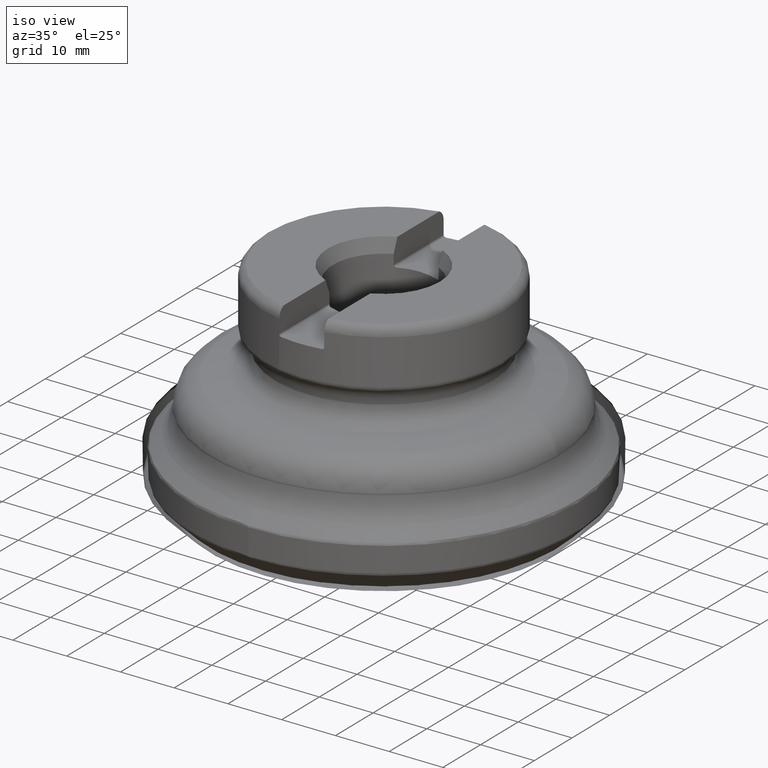
[diagram: clean part render]
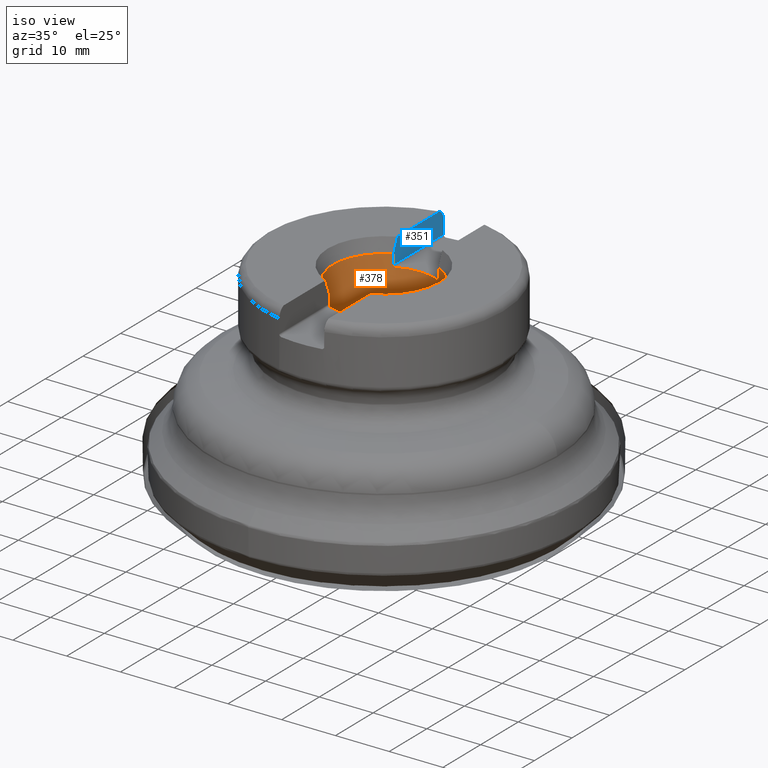
[diagram: same view with the hole feature highlighted: cylindrical wall and planar end face, labeled with their STEP entity ids]
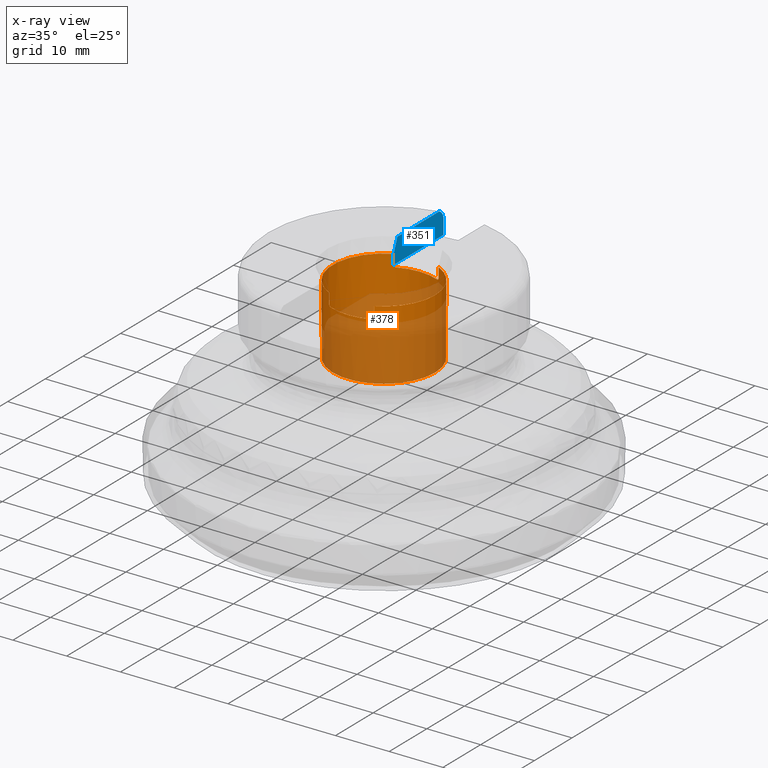
[diagram: x-ray of the same camera — body ghosted, the hole faces saturated]
A machine part, iso view. The highlighted faces form one hole feature of diameter 19.05 mm: the cylindrical wall (entity #378, orange) and its adjacent planar end face (entity #351, blue) — they share a circular edge in the B-rep.
The next image is the same camera in x-ray (body ghosted, the hole faces saturated) — the bore reads through the body.
Wall:
#175=CYLINDRICAL_SURFACE('',#1074,9.525);
#208=FACE_BOUND('',#486,.T.);
#209=FACE_BOUND('',#487,.T.);
#294=LINE('',#1537,#322);
#300=LINE('',#1554,#328);
#304=LINE('',#1567,#332);
#306=LINE('',#1576,#334);
#322=VECTOR('',#1135,1.);
#328=VECTOR('',#1143,1.);
#332=VECTOR('',#1149,1.);
#334=VECTOR('',#1153,1.);
#378=ADVANCED_FACE('',(#208,#209),#175,.F.);
#486=EDGE_LOOP('',(#714));
#487=EDGE_LOOP('',(#715,#716,#717,#718,#719,#720,#721,#722,#723,#724,#725,
#726));
#561=CIRCLE('',#1038,9.525);
#563=CIRCLE('',#1041,9.525);
#578=CIRCLE('',#1062,9.525);
#579=CIRCLE('',#1066,9.525);
#582=CIRCLE('',#1073,9.525);
#714=ORIENTED_EDGE('',*,*,#950,.F.);
#715=ORIENTED_EDGE('',*,*,#912,.T.);
#716=ORIENTED_EDGE('',*,*,#903,.T.);
#717=ORIENTED_EDGE('',*,*,#946,.F.);
#718=ORIENTED_EDGE('',*,*,#939,.T.);
#719=ORIENTED_EDGE('',*,*,#947,.F.);
#720=ORIENTED_EDGE('',*,*,#891,.T.);
#721=ORIENTED_EDGE('',*,*,#910,.T.);
#722=ORIENTED_EDGE('',*,*,#898,.T.);
#723=ORIENTED_EDGE('',*,*,#944,.F.);
#724=ORIENTED_EDGE('',*,*,#945,.T.);
#725=ORIENTED_EDGE('',*,*,#941,.F.);
#726=ORIENTED_EDGE('',*,*,#906,.T.);
#810=VERTEX_POINT('',#1536);
#811=VERTEX_POINT('',#1538);
#814=VERTEX_POINT('',#1548);
#816=VERTEX_POINT('',#1553);
#818=VERTEX_POINT('',#1561);
#820=VERTEX_POINT('',#1566);
#822=VERTEX_POINT('',#1575);
#823=VERTEX_POINT('',#1577);
#848=VERTEX_POINT('',#1881);
#849=VERTEX_POINT('',#1883);
#850=VERTEX_POINT('',#1905);
#851=VERTEX_POINT('',#1909);
#854=VERTEX_POINT('',#1972);
#891=EDGE_CURVE('',#811,#810,#294,.T.);
#898=EDGE_CURVE('',#814,#816,#300,.T.);
#903=EDGE_CURVE('',#818,#820,#304,.T.);
#906=EDGE_CURVE('',#823,#822,#306,.T.);
#910=EDGE_CURVE('',#810,#814,#561,.T.);
#912=EDGE_CURVE('',#822,#818,#563,.T.);
#939=EDGE_CURVE('',#849,#848,#578,.T.);
#941=EDGE_CURVE('',#823,#850,#1014,.T.);
#944=EDGE_CURVE('',#851,#816,#1015,.T.);
#945=EDGE_CURVE('',#851,#850,#579,.T.);
#946=EDGE_CURVE('',#849,#820,#1016,.T.);
#947=EDGE_CURVE('',#811,#848,#1017,.T.);
#950=EDGE_CURVE('',#854,#854,#582,.T.);
#1014=B_SPLINE_CURVE_WITH_KNOTS('',3,(#1886,#1887,#1888,#1889,#1890,#1891,
#1892,#1893,#1894,#1895,#1896,#1897,#1898,#1899,#1900,#1901,#1902,#1903,
#1904),.UNSPECIFIED.,.F.,.F.,(4,3,3,3,3,3,4),(0.,0.046691483221306,0.253760914020807,
0.483837973279792,0.726357143929704,0.965681344552278,1.),.UNSPECIFIED.);
#1015=B_SPLINE_CURVE_WITH_KNOTS('',3,(#1910,#1911,#1912,#1913,#1914,#1915,
#1916,#1917,#1918,#1919,#1920,#1921,#1922,#1923,#1924,#1925),
 .UNSPECIFIED.,.F.,.F.,(4,3,3,3,3,4),(0.,0.206937369334465,0.423509286042872,
0.620977371917134,0.810210906928371,1.),.UNSPECIFIED.);
#1016=B_SPLINE_CURVE_WITH_KNOTS('',3,(#1929,#1930,#1931,#1932,#1933,#1934,
#1935,#1936,#1937,#1938,#1939,#1940,#1941,#1942,#1943,#1944,#1945,#1946,
#1947),.UNSPECIFIED.,.F.,.F.,(4,3,3,3,3,3,4),(0.,0.0386594743957453,0.269044895788536,
0.480081106362779,0.673449817538788,0.857853975453466,1.),.UNSPECIFIED.);
#1017=B_SPLINE_CURVE_WITH_KNOTS('',3,(#1949,#1950,#1951,#1952,#1953,#1954,
#1955,#1956,#1957,#1958,#1959,#1960,#1961,#1962,#1963,#1964),
 .UNSPECIFIED.,.F.,.F.,(4,3,3,3,3,4),(0.,0.108413031410189,0.323007237368325,
0.55870780391992,0.801825649246486,1.),.UNSPECIFIED.);
#1038=AXIS2_PLACEMENT_3D('',#1583,#1160,#1161);
#1041=AXIS2_PLACEMENT_3D('',#1586,#1166,#1167);
#1062=AXIS2_PLACEMENT_3D('',#1882,#1218,#1219);
#1066=AXIS2_PLACEMENT_3D('',#1927,#1229,#1230);
#1073=AXIS2_PLACEMENT_3D('',#1971,#1243,#1244);
#1074=AXIS2_PLACEMENT_3D('',#1973,#1245,#1246);
#1135=DIRECTION('',(1.17145536458253E-15,1.33226762955019E-15,1.));
#1143=DIRECTION('',(-1.17145536458253E-15,-1.33226762955019E-15,-1.));
#1149=DIRECTION('',(-1.17145536458253E-15,-1.33226762955019E-15,-1.));
#1153=DIRECTION('',(1.17145536458253E-15,1.33226762955019E-15,1.));
#1160=DIRECTION('',(1.17145536458253E-15,1.33226762955019E-15,1.));
#1161=DIRECTION('',(1.,-3.1641356201817E-15,-1.45698559662094E-15));
#1166=DIRECTION('',(1.17145536458253E-15,1.33226762955019E-15,1.));
#1167=DIRECTION('',(1.,-3.1641356201817E-15,-1.45698559662094E-15));
#1218=DIRECTION('',(1.17145536458253E-15,1.33226762955019E-15,1.));
#1219=DIRECTION('',(-1.,3.1641356201817E-15,1.45698559662094E-15));
#1229=DIRECTION('',(1.17145536458253E-15,1.33226762955019E-15,1.));
#1230=DIRECTION('',(-1.,3.1641356201817E-15,1.45698559662094E-15));
#1243=DIRECTION('',(1.17145536458253E-15,1.33226762955019E-15,1.));
#1244=DIRECTION('',(1.,-3.1641356201817E-15,-1.09273919746571E-15));
#1245=DIRECTION('',(-1.17145536458253E-15,-1.33226762955019E-15,-1.));
#1246=DIRECTION('',(1.,-3.1641356201817E-15,-1.45698559662094E-15));
#1536=CARTESIAN_POINT('',(-4.17499999999993,8.56124990874587,37.5));
#1537=CARTESIAN_POINT('',(-4.17499999999992,8.56124990874587,40.2));
#1538=CARTESIAN_POINT('',(-4.17499999999993,8.56124990874587,35.65));
#1548=CARTESIAN_POINT('',(-4.17499999999998,-8.56124990874574,37.5));
#1553=CARTESIAN_POINT('',(-4.17499999999998,-8.56124990874575,35.65));
#1554=CARTESIAN_POINT('',(-4.17499999999998,-8.56124990874574,40.2));
#1561=CARTESIAN_POINT('',(4.17500000000008,8.56124990874584,37.5));
#1566=CARTESIAN_POINT('',(4.17500000000008,8.56124990874583,35.65));
#1567=CARTESIAN_POINT('',(4.17500000000008,8.56124990874584,40.2));
#1575=CARTESIAN_POINT('',(4.17500000000002,-8.56124990874576,37.5));
#1576=CARTESIAN_POINT('',(4.17500000000003,-8.56124990874576,40.2));
#1577=CARTESIAN_POINT('',(4.17500000000002,-8.56124990874577,35.65));
#1583=CARTESIAN_POINT('',(4.39295761718448E-14,4.9960036108132E-14,37.5));
#1586=CARTESIAN_POINT('',(4.39295761718448E-14,4.9960036108132E-14,37.5));
#1881=CARTESIAN_POINT('',(-3.77499999999993,8.74499857061173,35.25));
#1882=CARTESIAN_POINT('',(4.12938016015341E-14,4.69624339416441E-14,35.25));
#1883=CARTESIAN_POINT('',(3.77500000000008,8.7449985706117,35.25));
#1886=CARTESIAN_POINT('',(4.17500000000002,-8.56124990874577,35.65));
#1887=CARTESIAN_POINT('',(4.17500000000002,-8.56124990874577,35.6396736248158));
#1888=CARTESIAN_POINT('',(4.1745992399474,-8.56144537883924,35.6293377166004));
#1889=CARTESIAN_POINT('',(4.17380079457273,-8.56183461223257,35.6190496163484));
#1890=CARTESIAN_POINT('',(4.17029864495975,-8.56354187189121,35.5739238413632));
#1891=CARTESIAN_POINT('',(4.15879922795192,-8.56915472133482,35.5288623706117));
#1892=CARTESIAN_POINT('',(4.14081829740184,-8.57783474006708,35.4882070048301));
#1893=CARTESIAN_POINT('',(4.12087014956781,-8.5874644028029,35.443103708057));
#1894=CARTESIAN_POINT('',(4.09231403370197,-8.60116107532832,35.4018346841028));
#1895=CARTESIAN_POINT('',(4.05869487562512,-8.61699604888931,35.3680120258875));
#1896=CARTESIAN_POINT('',(4.02323625649087,-8.63369742776431,35.3323387721724));
#1897=CARTESIAN_POINT('',(3.98100721019213,-8.6533014676501,35.3036524385155));
#1898=CARTESIAN_POINT('',(3.93621356246058,-8.67362944739403,35.2839259811476));
#1899=CARTESIAN_POINT('',(3.89194493821607,-8.6937191641844,35.2644307363278));
#1900=CARTESIAN_POINT('',(3.84386899581251,-8.71510374127135,35.2530544874384));
#1901=CARTESIAN_POINT('',(3.79588582965834,-8.73595305437241,35.2505456445106));
#1902=CARTESIAN_POINT('',(3.78893348395288,-8.73897393948729,35.2501821348727));
#1903=CARTESIAN_POINT('',(3.78196754203756,-8.74199085471787,35.25));
#1904=CARTESIAN_POINT('',(3.77500000000002,-8.74499857061163,35.25));
#1905=CARTESIAN_POINT('',(3.77500000000002,-8.74499857061163,35.25));
#1909=CARTESIAN_POINT('',(-3.77499999999998,-8.74499857061161,35.25));
#1910=CARTESIAN_POINT('',(-3.77499999999998,-8.74499857061161,35.25));
#1911=CARTESIAN_POINT('',(-3.81656461614317,-8.72705615190524,35.25));
#1912=CARTESIAN_POINT('',(-3.85841738595403,-8.70862364477195,35.2565850754852));
#1913=CARTESIAN_POINT('',(-3.89803715274735,-8.69085331574525,35.2693927758912));
#1914=CARTESIAN_POINT('',(-3.93955464915789,-8.67223181361909,35.282813946652));
#1915=CARTESIAN_POINT('',(-3.97956810047,-8.65391245161978,35.3034034130693));
#1916=CARTESIAN_POINT('',(-4.01513068905723,-8.63738100061528,35.3300980585041));
#1917=CARTESIAN_POINT('',(-4.04758633172246,-8.62229382929691,35.3544605109498));
#1918=CARTESIAN_POINT('',(-4.07705931876257,-8.6083638635753,35.3844780066998));
#1919=CARTESIAN_POINT('',(-4.1012116856857,-8.59684172875097,35.418513637287));
#1920=CARTESIAN_POINT('',(-4.12434584444942,-8.58580534059194,35.4511144040829));
#1921=CARTESIAN_POINT('',(-4.14311039443197,-8.57673929736878,35.4882060452832));
#1922=CARTESIAN_POINT('',(-4.15569850755682,-8.57063561903602,35.5272455852362));
#1923=CARTESIAN_POINT('',(-4.16830737273042,-8.56452187852562,35.5663494835589));
#1924=CARTESIAN_POINT('',(-4.17499999999998,-8.56124990874575,35.6084611486916));
#1925=CARTESIAN_POINT('',(-4.17499999999998,-8.56124990874575,35.65));
#1927=CARTESIAN_POINT('',(4.12938016015341E-14,4.69624339416441E-14,35.25));
#1929=CARTESIAN_POINT('',(3.77500000000008,8.7449985706117,35.25));
#1930=CARTESIAN_POINT('',(3.7828319025705,8.74161773161388,35.25));
#1931=CARTESIAN_POINT('',(3.79066209357225,8.73822513158498,35.2502301556307));
#1932=CARTESIAN_POINT('',(3.79847354540314,8.73482820236744,35.250689353177));
#1933=CARTESIAN_POINT('',(3.84462536051248,8.71475838019079,35.2534023956065));
#1934=CARTESIAN_POINT('',(3.89079669083716,8.69422372993685,35.2643109342927));
#1935=CARTESIAN_POINT('',(3.93351596331444,8.67485314955542,35.2827498272641));
#1936=CARTESIAN_POINT('',(3.97270036278945,8.65708541813789,35.2996629652033));
#1937=CARTESIAN_POINT('',(4.00991051466914,8.63988011341602,35.3233156854881));
#1938=CARTESIAN_POINT('',(4.04237799729332,8.624662609459,35.3524953671563));
#1939=CARTESIAN_POINT('',(4.07214795310079,8.61070943589317,35.3792506855096));
#1940=CARTESIAN_POINT('',(4.09858614795708,8.59812510101886,35.4112783314609));
#1941=CARTESIAN_POINT('',(4.11951237058177,8.58808726251806,35.4467483665104));
#1942=CARTESIAN_POINT('',(4.13946274679613,8.57851751559996,35.4805643378047));
#1943=CARTESIAN_POINT('',(4.15483582076009,8.57106009559083,35.5183282752095));
#1944=CARTESIAN_POINT('',(4.16413292027586,8.5665408434371,35.5573956245222));
#1945=CARTESIAN_POINT('',(4.17129463523328,8.56305958611692,35.5874898726738));
#1946=CARTESIAN_POINT('',(4.17500000000008,8.56124990874583,35.6188700612677));
#1947=CARTESIAN_POINT('',(4.17500000000008,8.56124990874583,35.65));
#1949=CARTESIAN_POINT('',(-4.17499999999993,8.56124990874587,35.65));
#1950=CARTESIAN_POINT('',(-4.17499999999993,8.56124990874587,35.6259936956598));
#1951=CARTESIAN_POINT('',(-4.1728133899315,8.56231721657196,35.6018703742219));
#1952=CARTESIAN_POINT('',(-4.16852901904099,8.56440253709584,35.5783417054865));
#1953=CARTESIAN_POINT('',(-4.16015976808065,8.56847608050353,35.5323799205614));
#1954=CARTESIAN_POINT('',(-4.14336818386909,8.5766412679025,35.4875736915034));
#1955=CARTESIAN_POINT('',(-4.12037587702253,8.5876730044903,35.4482191694663));
#1956=CARTESIAN_POINT('',(-4.09514332914582,8.59977961142941,35.4050301642006));
#1957=CARTESIAN_POINT('',(-4.06163691019236,8.61571094335509,35.3668454300065));
#1958=CARTESIAN_POINT('',(-4.02378011558017,8.63335500147319,35.3367773091044));
#1959=CARTESIAN_POINT('',(-3.98469105338971,8.65157338715892,35.305730447902));
#1960=CARTESIAN_POINT('',(-3.93972891098105,8.67218409589322,35.2822348974642));
#1961=CARTESIAN_POINT('',(-3.89305024467195,8.69308833455983,35.2678166150486));
#1962=CARTESIAN_POINT('',(-3.85493127539028,8.71015925998672,35.2560422841187));
#1963=CARTESIAN_POINT('',(-3.81484118786619,8.72780011334718,35.25));
#1964=CARTESIAN_POINT('',(-3.77499999999993,8.74499857061173,35.25));
#1971=CARTESIAN_POINT('',(2.86420836640428E-14,3.25739435425021E-14,24.45));
#1972=CARTESIAN_POINT('',(9.52500000000003,2.43555176027144E-15,24.45));
#1973=CARTESIAN_POINT('',(4.70925056562176E-14,5.35571587079176E-14,40.2));
End face:
#281=PLANE('',#1033);
#293=LINE('',#1530,#321);
#294=LINE('',#1537,#322);
#295=LINE('',#1539,#323);
#296=LINE('',#1541,#324);
#321=VECTOR('',#1134,1.);
#322=VECTOR('',#1135,1.);
#323=VECTOR('',#1136,1.);
#324=VECTOR('',#1137,1.);
#351=ADVANCED_FACE('',(#428),#281,.T.);
#428=FACE_OUTER_BOUND('',#444,.T.);
#444=EDGE_LOOP('',(#617,#618,#619,#620,#621,#622));
#617=ORIENTED_EDGE('',*,*,#883,.F.);
#618=ORIENTED_EDGE('',*,*,#889,.T.);
#619=ORIENTED_EDGE('',*,*,#890,.F.);
#620=ORIENTED_EDGE('',*,*,#891,.F.);
#621=ORIENTED_EDGE('',*,*,#892,.T.);
#622=ORIENTED_EDGE('',*,*,#893,.T.);
#803=VERTEX_POINT('',#1477);
#804=VERTEX_POINT('',#1491);
#809=VERTEX_POINT('',#1531);
#810=VERTEX_POINT('',#1536);
#811=VERTEX_POINT('',#1538);
#812=VERTEX_POINT('',#1540);
#883=EDGE_CURVE('',#803,#804,#994,.T.);
#889=EDGE_CURVE('',#803,#809,#293,.T.);
#890=EDGE_CURVE('',#810,#809,#997,.T.);
#891=EDGE_CURVE('',#811,#810,#294,.T.);
#892=EDGE_CURVE('',#811,#812,#295,.T.);
#893=EDGE_CURVE('',#812,#804,#296,.T.);
#994=B_SPLINE_CURVE_WITH_KNOTS('',3,(#1478,#1479,#1480,#1481,#1482,#1483,
#1484,#1485,#1486,#1487,#1488,#1489,#1490),.UNSPECIFIED.,.F.,.F.,(4,3,3,
3,4),(0.,0.250169184687352,0.556547674045343,0.745651126073312,1.),
 .UNSPECIFIED.);
#997=B_SPLINE_CURVE_WITH_KNOTS('',3,(#1532,#1533,#1534,#1535),
 .UNSPECIFIED.,.F.,.F.,(4,4),(0.,1.),.UNSPECIFIED.);
#1033=AXIS2_PLACEMENT_3D('',#1542,#1138,#1139);
#1134=DIRECTION('',(-3.16413562018169E-15,-1.,1.33226762955019E-15));
#1135=DIRECTION('',(1.17145536458253E-15,1.33226762955019E-15,1.));
#1136=DIRECTION('',(3.16413562018169E-15,1.,-1.33226762955019E-15));
#1137=DIRECTION('',(1.17145536458253E-15,1.33226762955019E-15,1.));
#1138=DIRECTION('',(1.,-3.1641356201817E-15,-1.26409695217795E-15));
#1139=DIRECTION('',(1.2637460522491E-15,1.33226762955019E-15,1.));
#1477=CARTESIAN_POINT('',(-4.17499999999988,20.6795428492311,40.0000000000007));
#1478=CARTESIAN_POINT('',(-4.17499999999988,20.6795428492311,40.0000000000007));
#1479=CARTESIAN_POINT('',(-4.17499999999988,20.8484348739205,39.9198196039205));
#1480=CARTESIAN_POINT('',(-4.17499999999988,21.0077785129164,39.8154003322661));
#1481=CARTESIAN_POINT('',(-4.17499999999988,21.1484473456295,39.6922512704655));
#1482=CARTESIAN_POINT('',(-4.17499999999988,21.3206401631019,39.5415044169405));
#1483=CARTESIAN_POINT('',(-4.17499999999988,21.4690026152886,39.3584644101458));
#1484=CARTESIAN_POINT('',(-4.17499999999988,21.580233497771,39.15845773271));
#1485=CARTESIAN_POINT('',(-4.17499999999988,21.6495163514554,39.0338787213831));
#1486=CARTESIAN_POINT('',(-4.17499999999988,21.7056395857915,38.9010304224226));
#1487=CARTESIAN_POINT('',(-4.17499999999988,21.7465470159614,38.7644777731084));
#1488=CARTESIAN_POINT('',(-4.17499999999988,21.8011211838265,38.5823043348078));
#1489=CARTESIAN_POINT('',(-4.17499999999988,21.8293380568446,38.39017229404));
#1490=CARTESIAN_POINT('',(-4.17499999999988,21.8293380568446,38.2));
#1491=CARTESIAN_POINT('',(-4.17499999999988,21.8293380568446,38.2));
#1530=CARTESIAN_POINT('',(-4.1750000000001,-47.9999999999999,40.0000000000001));
#1531=CARTESIAN_POINT('',(-4.17499999999992,9.56331778089477,40.));
#1532=CARTESIAN_POINT('',(-4.17499999999993,8.56124990874587,37.5));
#1533=CARTESIAN_POINT('',(-4.17499999999992,8.89818873609988,38.3320652449952));
#1534=CARTESIAN_POINT('',(-4.17499999999992,9.23194527231544,39.1656085634594));
#1535=CARTESIAN_POINT('',(-4.17499999999992,9.56331778089477,40.));
#1536=CARTESIAN_POINT('',(-4.17499999999993,8.56124990874587,37.5));
#1537=CARTESIAN_POINT('',(-4.17499999999992,8.56124990874587,40.2));
#1538=CARTESIAN_POINT('',(-4.17499999999993,8.56124990874587,35.65));
#1539=CARTESIAN_POINT('',(-4.17500000000011,-47.9999999999999,35.6500000000001));
#1540=CARTESIAN_POINT('',(-4.17499999999989,21.8293380568446,35.65));
#1541=CARTESIAN_POINT('',(-4.17499999999988,21.8293380568446,40.2));
#1542=CARTESIAN_POINT('',(-4.17500000000009,-47.9999999999999,44.6125526127233));